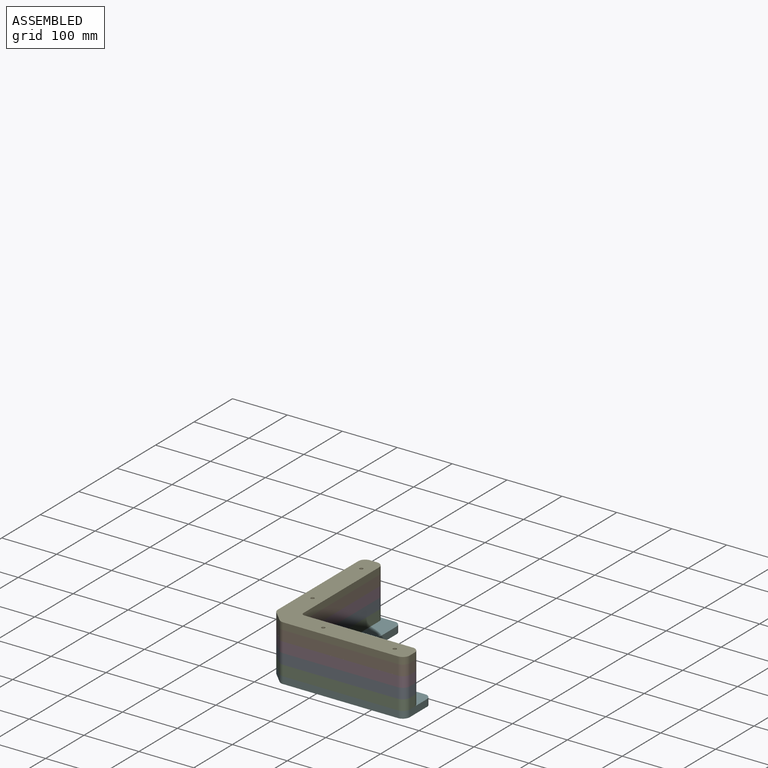
[diagram: assembled view]
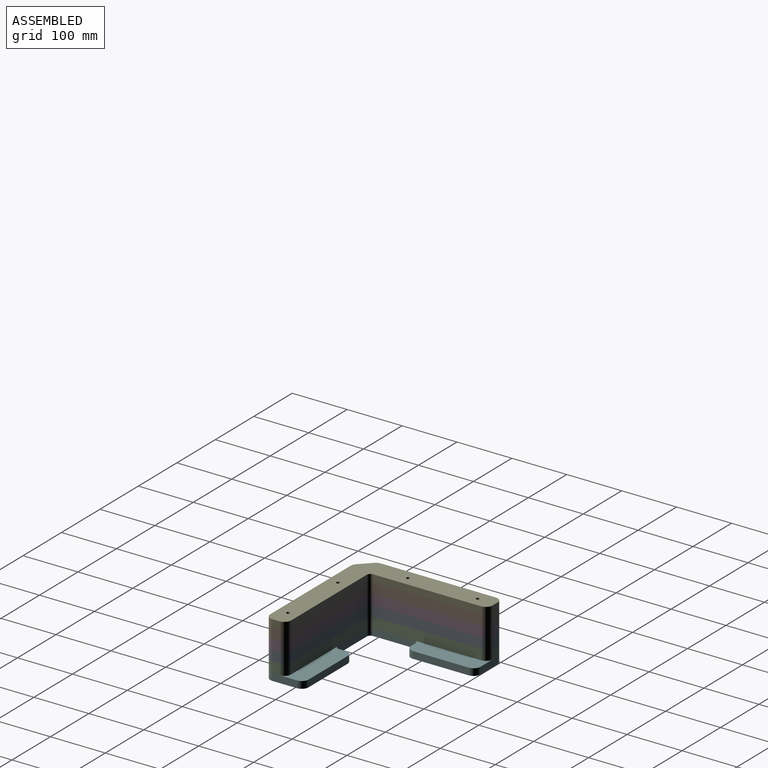
[diagram: assembled view, second angle]
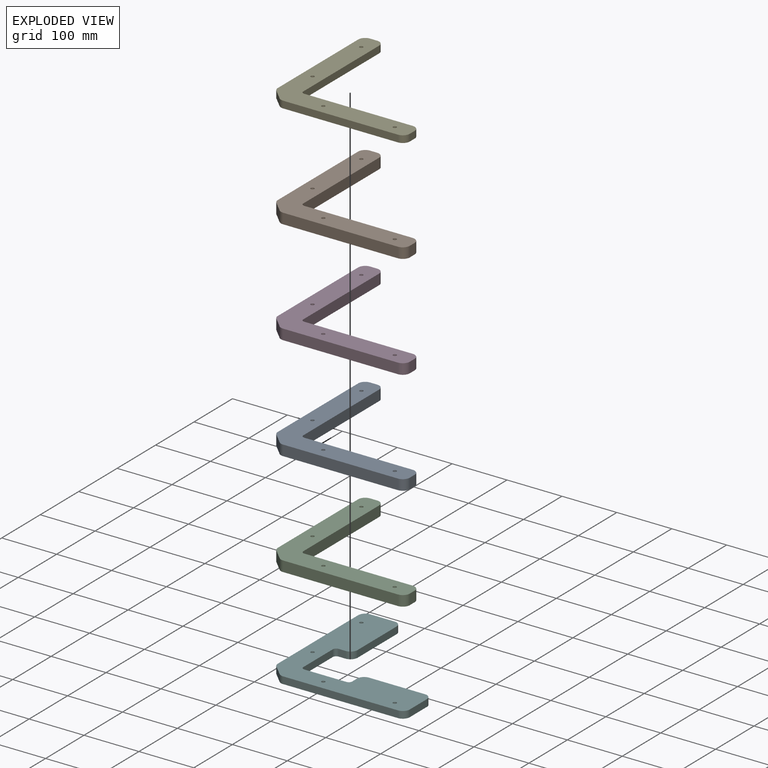
[diagram: exploded view]
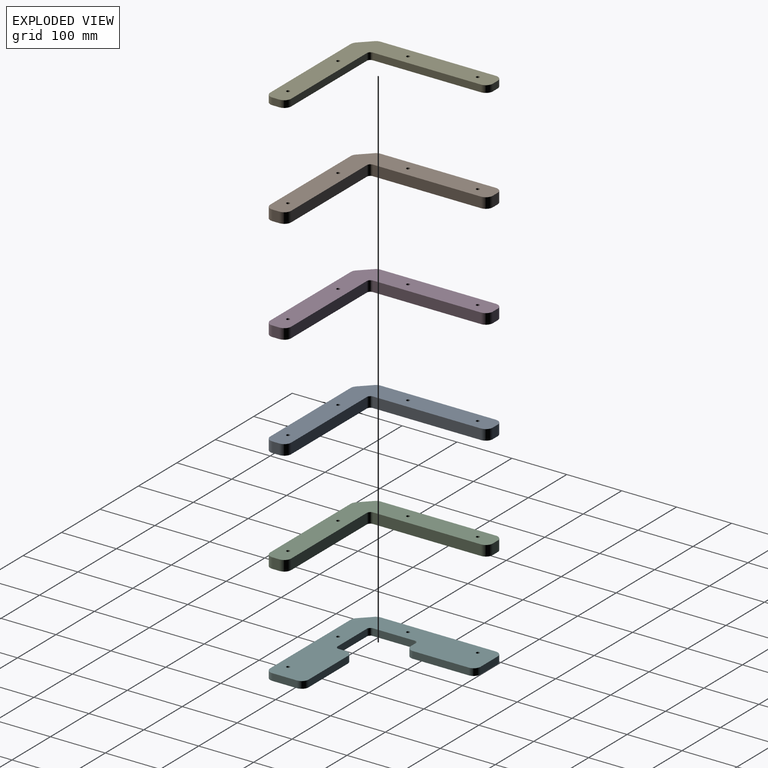
[diagram: exploded view, second angle]
ASSEMBLY  parts=6 mates=18
PART A: 20 faces, bbox 254x254x19.1 mm
  f0: plane 209.1x19.05mm, normal (-1,0,0), area 3983.3mm2, adj f1,f16,f18,f19
  f1: cylinder r=12.7mm len=19.05mm, axis (0,0,-1), area 190mm2, adj f0,f2,f18,f19
  f2: plane 19.5x19.5mm, normal (-0.71,-0.71,0), area 525.4mm2, adj f1,f3,f18,f19
  f3: cylinder r=12.7mm len=19.05mm, axis (0,0,-1), area 190mm2, adj f2,f4,f18,f19
  f4: plane 209.1x19.05mm, normal (0,-1,0), area 3983.3mm2, adj f3,f5,f18,f19
  f5: cylinder r=12.7mm len=19.05mm, axis (0,0,-1), area 380mm2, adj f4,f6,f18,f19
  f6: plane 19.05x12.7mm, normal (1,0,0), area 241.9mm2, adj f5,f7,f18,f19
  f7: cylinder r=12.7mm len=19.05mm, axis (0,0,-1), area 380mm2, adj f6,f8,f18,f19
  f8: plane 196.85x19.05mm, normal (0,1,0), area 3750mm2, adj f7,f9,f18,f19
  f9: cylinder r=6.35mm len=19.05mm, axis (0,0,-1), area 190mm2, adj f8,f10,f18,f19
  f10: plane 196.85x19.05mm, normal (1,0,0), area 3750mm2, adj f9,f11,f18,f19
  f11: cylinder r=12.7mm len=19.05mm, axis (0,0,-1), area 380mm2, adj f10,f12,f18,f19
  f12: plane 19.05x12.7mm, normal (0,1,0), area 241.9mm2, adj f11,f16,f18,f19
  f13: cylinder r=3.17mm len=19.05mm, axis (0,0,-1), area 380mm2, adj f18,f19
  f14: cylinder r=3.17mm len=19.05mm, axis (0,0,-1), area 380mm2, adj f18,f19
  f15: cylinder r=3.17mm len=19.05mm, axis (0,0,-1), area 380mm2, adj f18,f19
  f16: cylinder r=12.7mm len=19.05mm, axis (0,0,-1), area 380mm2, adj f0,f12,f18,f19
  f17: cylinder r=3.17mm len=19.05mm, axis (0,0,-1), area 380mm2, adj f18,f19
  f18: plane 254x254mm, normal (0,0,1), area 17276.9mm2, adj f0,f1,f2,f3,f4,f5,f6,f7
  f19: plane 254x254mm, normal (0,0,-1), area 17276.9mm2, adj f0,f1,f2,f3,f4,f5,f6,f7
PART B: same geometry as A
PART C: same geometry as A
PART D: same geometry as A
PART E: 20 faces, bbox 254x254x12.7 mm
  f0: plane 209.1x12.7mm, normal (-1,0,0), area 2655.6mm2, adj f1,f16,f18,f19
  f1: cylinder r=12.7mm len=12.7mm, axis (0,0,-1), area 126.7mm2, adj f0,f2,f18,f19
  f2: plane 19.5x19.5mm, normal (-0.71,-0.71,0), area 350.3mm2, adj f1,f3,f18,f19
  f3: cylinder r=12.7mm len=12.7mm, axis (0,0,-1), area 126.7mm2, adj f2,f4,f18,f19
  f4: plane 209.1x12.7mm, normal (0,-1,0), area 2655.6mm2, adj f3,f5,f18,f19
  f5: cylinder r=12.7mm len=12.7mm, axis (0,0,-1), area 253.4mm2, adj f4,f6,f18,f19
  f6: plane 12.7x12.7mm, normal (1,0,0), area 161.3mm2, adj f5,f7,f18,f19
  f7: cylinder r=12.7mm len=12.7mm, axis (0,0,-1), area 253.4mm2, adj f6,f8,f18,f19
  f8: plane 196.85x12.7mm, normal (0,1,0), area 2500mm2, adj f7,f9,f18,f19
  f9: cylinder r=6.35mm len=12.7mm, axis (0,0,-1), area 126.7mm2, adj f8,f10,f18,f19
  f10: plane 196.85x12.7mm, normal (1,0,0), area 2500mm2, adj f9,f11,f18,f19
  f11: cylinder r=12.7mm len=12.7mm, axis (0,0,-1), area 253.4mm2, adj f10,f12,f18,f19
  f12: plane 12.7x12.7mm, normal (0,1,0), area 161.3mm2, adj f11,f16,f18,f19
  f13: cylinder r=3.17mm len=12.7mm, axis (0,0,-1), area 253.4mm2, adj f18,f19
  f14: cylinder r=3.17mm len=12.7mm, axis (0,0,-1), area 253.4mm2, adj f18,f19
  f15: cylinder r=3.17mm len=12.7mm, axis (0,0,-1), area 253.4mm2, adj f18,f19
  f16: cylinder r=12.7mm len=12.7mm, axis (0,0,-1), area 253.4mm2, adj f0,f12,f18,f19
  f17: cylinder r=3.17mm len=12.7mm, axis (0,0,-1), area 253.4mm2, adj f18,f19
  f18: plane 254x254mm, normal (0,0,1), area 17276.9mm2, adj f0,f1,f2,f3,f4,f5,f6,f7
  f19: plane 254x254mm, normal (0,0,-1), area 17276.9mm2, adj f0,f1,f2,f3,f4,f5,f6,f7
PART F: 28 faces, bbox 254x254x12.7 mm
  f0: cylinder r=6.35mm len=12.7mm, axis (0,0,-1), area 126.7mm2, adj f1,f25,f26,f27
  f1: plane 12.7x12.7mm, normal (0,-1,0), area 161.3mm2, adj f0,f2,f26,f27
  f2: cylinder r=12.7mm len=12.7mm, axis (0,0,-1), area 253.4mm2, adj f1,f3,f26,f27
  f3: plane 101.6x12.7mm, normal (1,0,0), area 1290.3mm2, adj f2,f4,f26,f27
  f4: cylinder r=12.7mm len=12.7mm, axis (0,0,-1), area 253.4mm2, adj f3,f5,f26,f27
  f5: plane 44.45x12.7mm, normal (0,1,0), area 564.5mm2, adj f4,f6,f26,f27
  f6: cylinder r=12.7mm len=12.7mm, axis (0,0,-1), area 253.4mm2, adj f5,f7,f26,f27
  f7: plane 209.1x12.7mm, normal (-1,0,0), area 2655.6mm2, adj f6,f8,f26,f27
  f8: cylinder r=12.7mm len=12.7mm, axis (0,0,-1), area 126.7mm2, adj f7,f9,f26,f27
  f9: plane 19.5x19.5mm, normal (-0.71,-0.71,0), area 350.3mm2, adj f8,f10,f26,f27
  f10: cylinder r=12.7mm len=12.7mm, axis (0,0,-1), area 126.7mm2, adj f9,f11,f26,f27
  f11: plane 209.1x12.7mm, normal (0,-1,0), area 2655.6mm2, adj f10,f12,f26,f27
  f12: cylinder r=12.7mm len=12.7mm, axis (0,0,-1), area 253.4mm2, adj f11,f13,f26,f27
  f13: plane 44.45x12.7mm, normal (1,0,0), area 564.5mm2, adj f12,f14,f26,f27
  f14: cylinder r=12.7mm len=12.7mm, axis (0,0,-1), area 253.4mm2, adj f13,f15,f26,f27
  f15: plane 101.6x12.7mm, normal (0,1,0), area 1290.3mm2, adj f14,f16,f26,f27
  f16: cylinder r=12.7mm len=12.7mm, axis (0,0,-1), area 253.4mm2, adj f15,f17,f26,f27
  f17: plane 12.7x12.7mm, normal (-1,0,0), area 161.3mm2, adj f16,f18,f26,f27
  f18: cylinder r=6.35mm len=12.7mm, axis (0,0,-1), area 126.7mm2, adj f17,f19,f26,f27
  f19: plane 76.2x12.7mm, normal (0,1,0), area 967.7mm2, adj f18,f20,f26,f27
  f20: cylinder r=6.35mm len=12.7mm, axis (0,0,-1), area 126.7mm2, adj f19,f25,f26,f27
  f21: cylinder r=3.17mm len=12.7mm, axis (0,0,-1), area 253.4mm2, adj f26,f27
  f22: cylinder r=3.17mm len=12.7mm, axis (0,0,-1), area 253.4mm2, adj f26,f27
  f23: cylinder r=3.17mm len=12.7mm, axis (0,0,-1), area 253.4mm2, adj f26,f27
  f24: cylinder r=3.17mm len=12.7mm, axis (0,0,-1), area 253.4mm2, adj f26,f27
  f25: plane 76.2x12.7mm, normal (1,0,0), area 967.7mm2, adj f0,f20,f26,f27
  f26: plane 254x254mm, normal (0,0,1), area 25289.5mm2, adj f0,f1,f2,f3,f4,f5,f6,f7
  f27: plane 254x254mm, normal (0,0,-1), area 25289.5mm2, adj f0,f1,f2,f3,f4,f5,f6,f7
PLACE A t=(264.41,202.53,-100.27)mm
PLACE B t=(264.41,202.53,-62.17)mm
PLACE C t=(264.41,202.53,-119.32)mm
PLACE D t=(264.41,202.53,-81.22)mm
PLACE E t=(264.41,202.53,-43.12)mm
PLACE F t=(264.41,202.53,-132.02)mm
MATE cylindrical A.f15 <-> C.f15  axis (0,0,-1) through (156.46,297.78,-100.27)mm
MATE planar B.f1 <-> E.f19  axis (0,0,1) through (150.11,107.73,-43.12)mm
MATE planar F.f26 <-> C.f19  axis (0,0,1) through (229.63,167.74,-119.32)mm
MATE planar A.f19 <-> C.f18  axis (0,0,-1) through (215.71,153.83,-100.27)mm
MATE planar A.f18 <-> D.f13  axis (0,0,1) through (215.71,153.83,-81.22)mm
MATE parallel C.f13 <-> F.f26  axis (0,0,-1) through (229.49,94.58,-119.32)mm
MATE cylindrical A.f17 <-> D.f17  axis (0,0,1) through (359.66,94.58,-81.22)mm
MATE cylindrical A.f15 <-> D.f15  axis (0,0,1) through (156.46,297.78,-81.22)mm
MATE cylindrical C.f17 <-> F.f24  axis (0,0,-1) through (359.66,94.58,-119.32)mm
MATE cylindrical D.f17 <-> B.f17  axis (0,0,1) through (359.66,94.58,-62.17)mm
MATE parallel A.f19 <-> C.f18  axis (0,0,-1) through (215.71,153.83,-100.27)mm
MATE cylindrical D.f15 <-> B.f15  axis (0,0,1) through (156.46,297.78,-62.17)mm
MATE cylindrical B.f15 <-> E.f15  axis (0,0,1) through (156.46,297.78,-43.12)mm
MATE parallel F.f26 <-> C.f19  axis (0,0,1) through (229.63,167.74,-119.32)mm
MATE cylindrical E.f17 <-> B.f17  axis (0,0,-1) through (359.66,94.58,-43.12)mm
MATE parallel F.f11 <-> C.f4  axis (0,-1,0) through (274.16,75.53,-125.67)mm
MATE planar D.f18 <-> B.f19  axis (0,0,1) through (215.71,153.83,-62.17)mm
MATE cylindrical C.f17 <-> A.f17  axis (0,0,1) through (359.66,94.58,-100.27)mm
